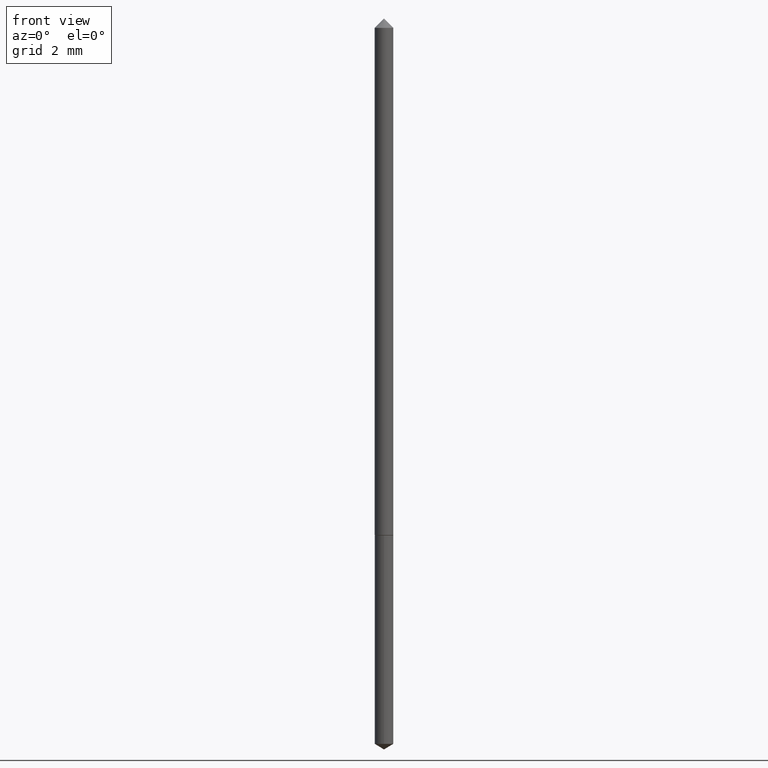
[diagram: clean part render]
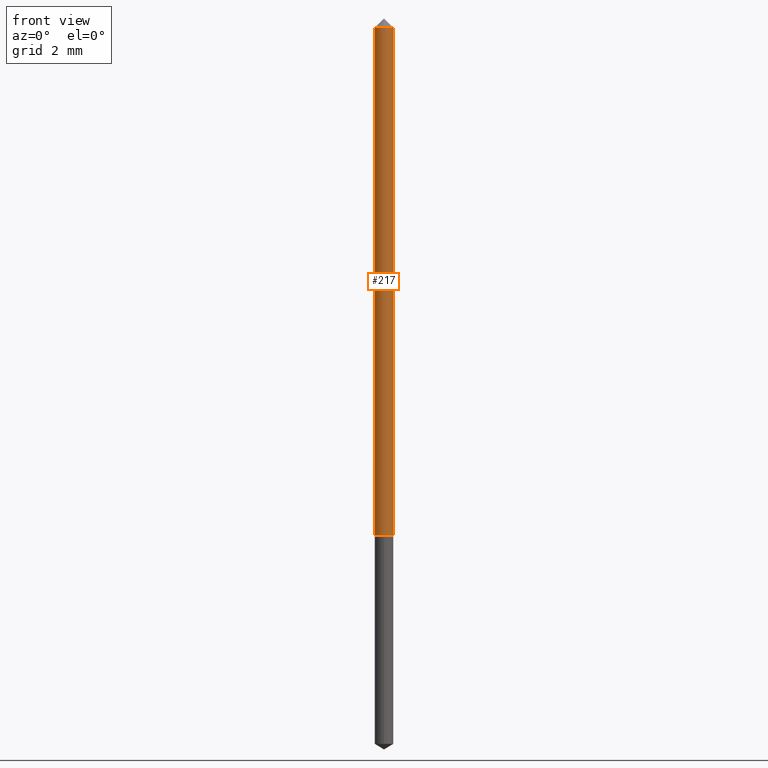
[diagram: same view with one face highlighted and labeled with its STEP entity id]
A machine part, front view. The second image highlights one B-rep face of the part: STEP entity #217.
In plain terms, the highlighted cylindrical surface (edge-blend (fillet) strip) has radius 0.3175 mm, axis along (-0, 0, 1).
Its self-contained STEP definition (entity closure, byte-faithful):
#11 = CARTESIAN_POINT ( 'NONE',  ( 0.01250000000000000590, -1.963958253099273852E-16, -0.03125000000000020123 ) ) ;
#26 = ORIENTED_EDGE ( 'NONE', *, *, #101, .F. ) ;
#39 = CARTESIAN_POINT ( 'NONE',  ( 1.741173790003817192E-29, -2.485934713256319295E-15, -0.7119999999999999662 ) ) ;
#52 = DIRECTION ( 'NONE',  ( -2.445468806185136877E-29, 3.491481338843145188E-15, 1.000000000000000000 ) ) ;
#80 = EDGE_CURVE ( 'NONE', #322, #352, #229, .T. ) ;
#82 = CARTESIAN_POINT ( 'NONE',  ( -0.01250000000000004580, 8.881784197001284864E-17, -6.148668862818655174E-31 ) ) ;
#92 = VERTEX_POINT ( 'NONE', #11 ) ;
#101 = EDGE_CURVE ( 'NONE', #352, #92, #342, .T. ) ;
#109 = CARTESIAN_POINT ( 'NONE',  ( -0.01250000000000000590, -1.208703910577569624E-15, -0.03125000000000020123 ) ) ;
#114 = AXIS2_PLACEMENT_3D ( 'NONE', #39, #330, #323 ) ;
#118 = DIRECTION ( 'NONE',  ( 1.000000000000000000, -6.982962677686266711E-15, 0.000000000000000000 ) ) ;
#119 = CARTESIAN_POINT ( 'NONE',  ( 0.01250000000000008916, -2.573221746727398418E-15, -0.7119999999999999662 ) ) ;
#131 = FACE_OUTER_BOUND ( 'NONE', #316, .T. ) ;
#132 = VERTEX_POINT ( 'NONE', #119 ) ;
#140 = EDGE_CURVE ( 'NONE', #322, #132, #281, .T. ) ;
#141 = CARTESIAN_POINT ( 'NONE',  ( -0.01250000000000008916, -2.397116871286306299E-15, -0.7119999999999999662 ) ) ;
#149 = EDGE_CURVE ( 'NONE', #132, #92, #182, .T. ) ;
#177 = DIRECTION ( 'NONE',  ( -2.445468806185136877E-29, 3.491481338843145188E-15, 1.000000000000000000 ) ) ;
#182 = LINE ( 'NONE', #184, #272 ) ;
#184 = CARTESIAN_POINT ( 'NONE',  ( 0.01250000000000004580, -8.728703347107865436E-17, 6.095220969744942512E-31 ) ) ;
#198 = CARTESIAN_POINT ( 'NONE',  ( 7.642090019328601786E-31, -1.091087918388490144E-16, -0.03125000000000020123 ) ) ;
#214 = CARTESIAN_POINT ( 'NONE',  ( 0.000000000000000000, 0.000000000000000000, 0.000000000000000000 ) ) ;
#217 = ADVANCED_FACE ( 'NONE', ( #131 ), #275, .T. ) ;
#224 = ORIENTED_EDGE ( 'NONE', *, *, #140, .T. ) ;
#225 = VECTOR ( 'NONE', #177, 39.37007874015748143 ) ;
#229 = LINE ( 'NONE', #82, #225 ) ;
#230 = AXIS2_PLACEMENT_3D ( 'NONE', #198, #288, #118 ) ;
#252 = DIRECTION ( 'NONE',  ( 1.000000000000000000, -6.982962677686266711E-15, 4.876176775795936353E-29 ) ) ;
#272 = VECTOR ( 'NONE', #52, 39.37007874015748143 ) ;
#275 = CYLINDRICAL_SURFACE ( 'NONE', #308, 0.01250000000000004580 ) ;
#281 = CIRCLE ( 'NONE', #114, 0.01250000000000008916 ) ;
#288 = DIRECTION ( 'NONE',  ( -2.445468806185136597E-29, 3.491481338843145583E-15, 1.000000000000000000 ) ) ;
#308 = AXIS2_PLACEMENT_3D ( 'NONE', #214, #326, #252 ) ;
#316 = EDGE_LOOP ( 'NONE', ( #341, #224, #319, #26 ) ) ;
#319 = ORIENTED_EDGE ( 'NONE', *, *, #149, .T. ) ;
#322 = VERTEX_POINT ( 'NONE', #141 ) ;
#323 = DIRECTION ( 'NONE',  ( 1.000000000000000000, -6.982962677686283277E-15, 0.000000000000000000 ) ) ;
#326 = DIRECTION ( 'NONE',  ( -2.445468806185136597E-29, 3.491481338843145583E-15, 1.000000000000000000 ) ) ;
#330 = DIRECTION ( 'NONE',  ( -2.445468806185136597E-29, 3.491481338843145583E-15, 1.000000000000000000 ) ) ;
#341 = ORIENTED_EDGE ( 'NONE', *, *, #80, .F. ) ;
#342 = CIRCLE ( 'NONE', #230, 0.01250000000000000590 ) ;
#352 = VERTEX_POINT ( 'NONE', #109 ) ;